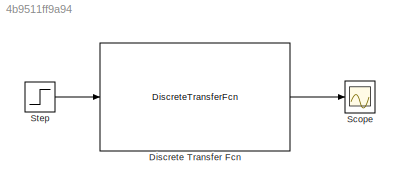
MODEL slx_4b9511ff9a94
KIND model
BLOCK [DiscreteTransferFcn] Discrete Transfer Fcn
  Denominator = [1 -1.752 0.8464]
  InputPortMap = u0
  Numerator = [12 -5.88]/440
  Ports = [1, 1]
  SampleTime = 0.01
BLOCK [Scope] Scope
  Floating = off
  NumInputPorts = 1
  Ports = [1]
  ShowLegends = off
BLOCK [Step] Step
  After = 440
  SampleTime = 0
  Time = 0
LINE Discrete Transfer Fcn:1 -> Scope:1
LINE Step:1 -> Discrete Transfer Fcn:1
